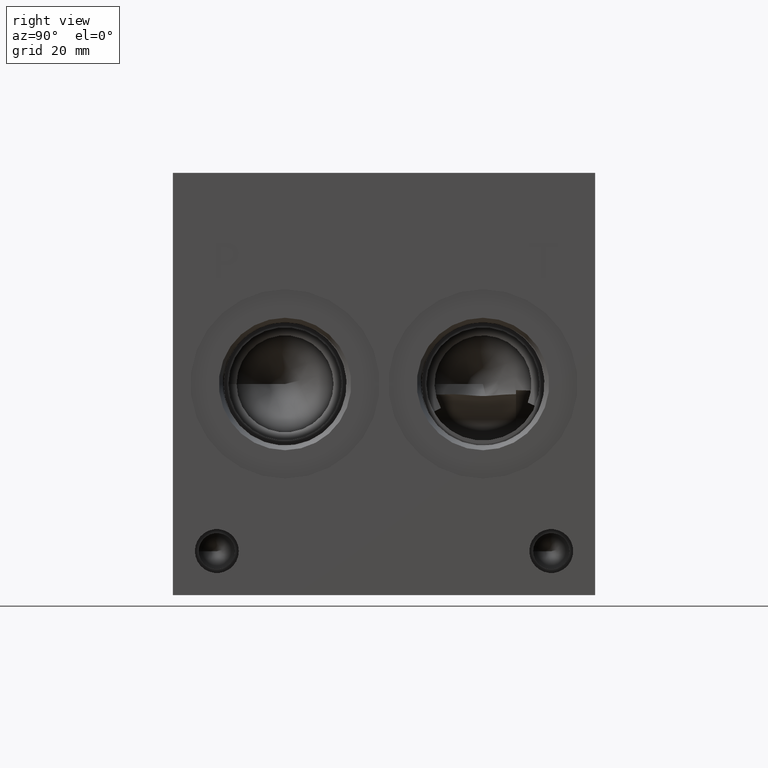
[diagram: clean part render]
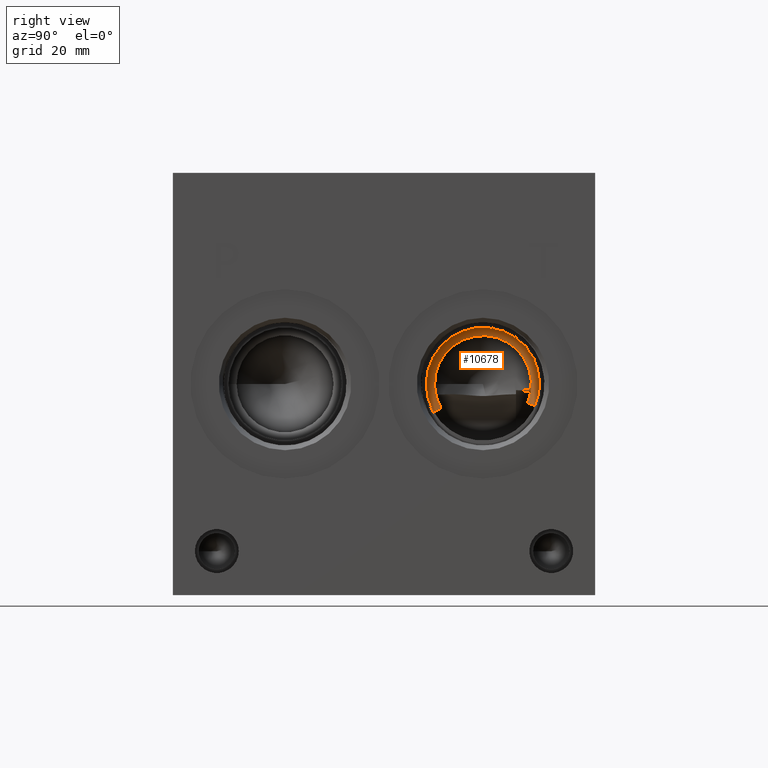
[diagram: same view with one face highlighted and labeled with its STEP entity id]
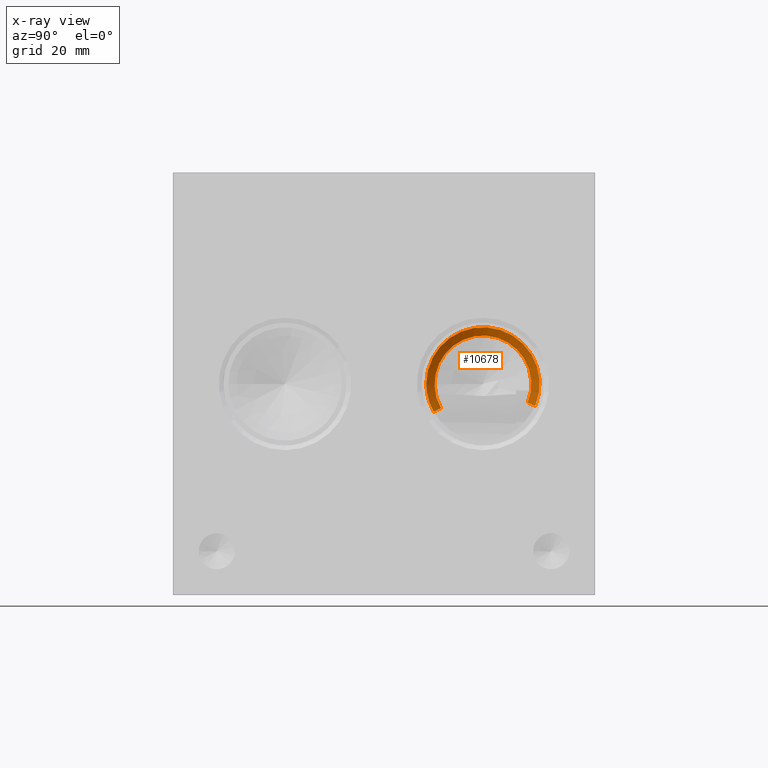
[diagram: x-ray of the same camera — body ghosted, the highlighted face saturated]
A machine part, right view. The second image highlights one B-rep face of the part: STEP entity #10678.
The next image is the same camera in x-ray: the body ghosted, the highlighted face saturated — about 0% of this face is hidden behind the body in this view.
In plain terms, the highlighted conical surface has half-angle 66 deg.
Its self-contained STEP definition (entity closure, byte-faithful):
#93=CONICAL_SURFACE('',#11227,5.11175,1.15191730631626);
#226=CIRCLE('',#11209,8.7376);
#237=CIRCLE('',#11225,10.2235);
#238=CIRCLE('',#11226,10.2235);
#696=B_SPLINE_CURVE_WITH_KNOTS('',3,(#18239,#18240,#18241,#18242,#18243,
#18244),.UNSPECIFIED.,.F.,.F.,(4,2,4),(1.68768151730478,1.81117704288783,
1.84429137340116),.UNSPECIFIED.);
#699=B_SPLINE_CURVE_WITH_KNOTS('',3,(#18285,#18286,#18287,#18288,#18289,
#18290,#18291),.UNSPECIFIED.,.F.,.F.,(4,3,4),(-0.110095699679883,0.,0.0487066013194461),
 .UNSPECIFIED.);
#1324=FACE_OUTER_BOUND('',#1930,.T.);
#1930=EDGE_LOOP('',(#9116,#9117,#9118,#9119,#9120));
#4888=VERTEX_POINT('',#18197);
#4889=VERTEX_POINT('',#18204);
#4898=VERTEX_POINT('',#18238);
#4902=VERTEX_POINT('',#18269);
#4903=VERTEX_POINT('',#18271);
#6330=EDGE_CURVE('',#4889,#4888,#226,.T.);
#6342=EDGE_CURVE('',#4889,#4898,#696,.T.);
#6349=EDGE_CURVE('',#4903,#4902,#237,.T.);
#6351=EDGE_CURVE('',#4902,#4898,#238,.T.);
#6352=EDGE_CURVE('',#4903,#4888,#699,.T.);
#9116=ORIENTED_EDGE('',*,*,#6330,.T.);
#9117=ORIENTED_EDGE('',*,*,#6352,.F.);
#9118=ORIENTED_EDGE('',*,*,#6349,.T.);
#9119=ORIENTED_EDGE('',*,*,#6351,.T.);
#9120=ORIENTED_EDGE('',*,*,#6342,.F.);
#10678=ADVANCED_FACE('',(#1324),#93,.F.);
#11209=AXIS2_PLACEMENT_3D('',#18205,#13216,#13217);
#11225=AXIS2_PLACEMENT_3D('',#18272,#13253,#13254);
#11226=AXIS2_PLACEMENT_3D('',#18283,#13255,#13256);
#11227=AXIS2_PLACEMENT_3D('',#18284,#13257,#13258);
#13216=DIRECTION('center_axis',(-1.,0.,0.));
#13217=DIRECTION('ref_axis',(0.,1.,0.));
#13253=DIRECTION('center_axis',(1.,0.,0.));
#13254=DIRECTION('ref_axis',(0.,1.,0.));
#13255=DIRECTION('center_axis',(1.,0.,0.));
#13256=DIRECTION('ref_axis',(0.,1.,0.));
#13257=DIRECTION('center_axis',(1.,0.,0.));
#13258=DIRECTION('ref_axis',(0.,-0.0604024477040929,0.998174105209785));
#18197=CARTESIAN_POINT('',(54.7612346964987,64.0134370992405,34.7196769257071));
#18204=CARTESIAN_POINT('',(54.7612346964889,48.3748290265577,33.7562150234124));
#18205=CARTESIAN_POINT('Origin',(54.7612346965001,55.9562,38.1));
#18238=CARTESIAN_POINT('',(55.4228,47.0574028914381,33.0669728521843));
#18239=CARTESIAN_POINT('Ctrl Pts',(54.7612346964889,48.3748290265685,33.7562150234187));
#18240=CARTESIAN_POINT('Ctrl Pts',(54.9417357824297,48.0047738886567,33.5865926123964));
#18241=CARTESIAN_POINT('Ctrl Pts',(55.118938005593,47.649658592202,33.4061387968681));
#18242=CARTESIAN_POINT('Ctrl Pts',(55.3312678960638,47.2344621114122,33.1715195302951));
#18243=CARTESIAN_POINT('Ctrl Pts',(55.3767931599625,47.1460503671344,33.1201356059673));
#18244=CARTESIAN_POINT('Ctrl Pts',(55.4228,47.0574028914381,33.0669728521843));
#18269=CARTESIAN_POINT('',(55.4228,45.7327,38.1));
#18271=CARTESIAN_POINT('',(55.4228,65.3749840104694,34.1242661037079));
#18272=CARTESIAN_POINT('Origin',(55.4228,55.9562,38.1));
#18283=CARTESIAN_POINT('Origin',(55.4228,55.9562,38.1));
#18284=CARTESIAN_POINT('Origin',(53.1469022678741,55.9562,38.1));
#18285=CARTESIAN_POINT('Ctrl Pts',(55.4228,65.3749840104694,34.1242661037079));
#18286=CARTESIAN_POINT('Ctrl Pts',(55.266326765311,65.0585074880228,34.2782427721575));
#18287=CARTESIAN_POINT('Ctrl Pts',(55.1122516884653,64.7425562897162,34.4197060755842));
#18288=CARTESIAN_POINT('Ctrl Pts',(54.9629851707823,64.4333291309907,34.5492303967017));
#18289=CARTESIAN_POINT('Ctrl Pts',(54.896949305728,64.2965262950854,34.6065322666947));
#18290=CARTESIAN_POINT('Ctrl Pts',(54.8296067630762,64.156379015655,34.6634447544433));
#18291=CARTESIAN_POINT('Ctrl Pts',(54.7612346964987,64.0134370992391,34.7196769257077));